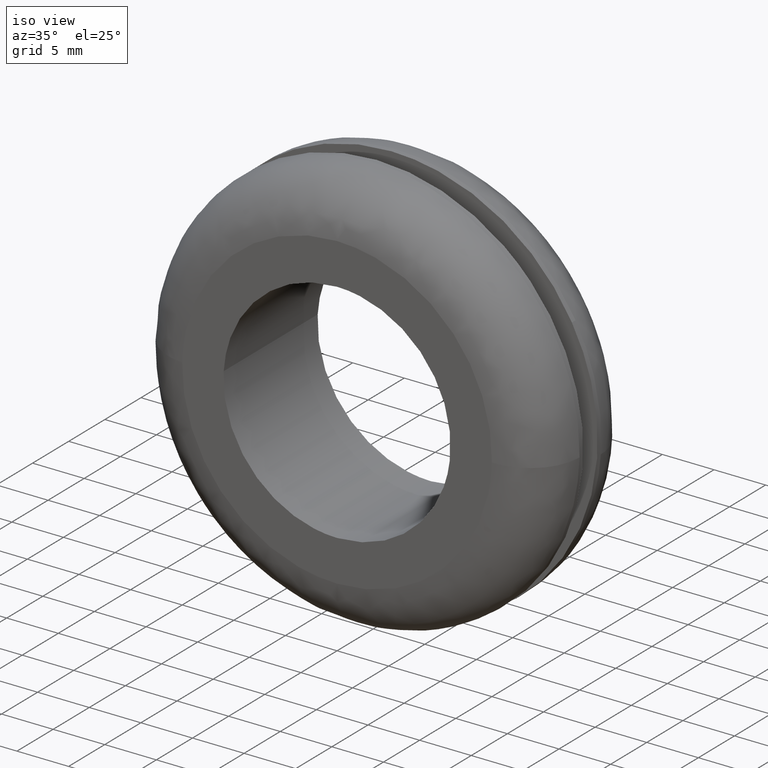
[diagram: clean part render]
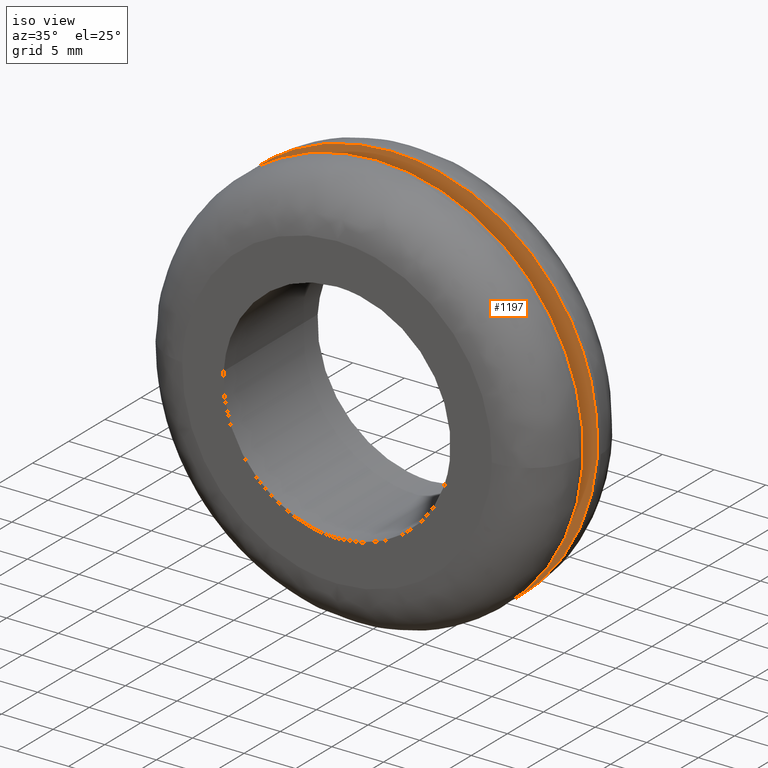
[diagram: same view with one face highlighted and labeled with its STEP entity id]
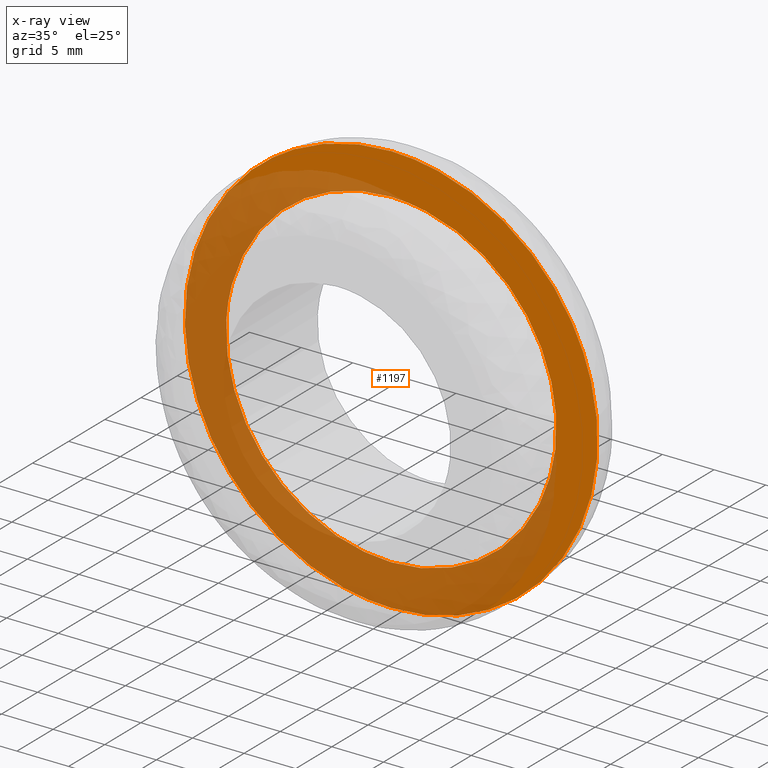
[diagram: x-ray of the same camera — body ghosted, the highlighted face saturated]
A machine part, iso view. The second image highlights one B-rep face of the part: STEP entity #1197.
The next image is the same camera in x-ray: the body ghosted, the highlighted face saturated — about 58% of this face is hidden behind the body in this view.
In plain terms, the highlighted face is a freeform B-spline surface patch.
Its self-contained STEP definition (entity closure, byte-faithful):
#301=CARTESIAN_POINT('',(15.888154302092399,7.500000000000000,-1.888531935829760));
#302=VERTEX_POINT('',#301);
#308=CARTESIAN_POINT('',(0.0,7.500000000000000,16.0));
#309=VERTEX_POINT('',#308);
#310=CARTESIAN_POINT('',(15.888154302092396,7.500000000000000,-1.888531935829760));
#311=CARTESIAN_POINT('',(16.000000000000004,7.500000000000000,-0.947577921476031));
#312=CARTESIAN_POINT('',(16.0,7.500000000000000,-3.673819E-016));
#313=CARTESIAN_POINT('',(15.999999999999998,7.500000000000000,15.999999999999998));
#314=CARTESIAN_POINT('',(0.0,7.500000000000000,16.0));
#322=(BOUNDED_CURVE()B_SPLINE_CURVE(2,(#310,#311,#312,#313,#314),.UNSPECIFIED.,.F.,.U.)B_SPLINE_CURVE_WITH_KNOTS((3,2,3),(0.229562641779904,0.250000000000000,0.500000000000000),.UNSPECIFIED.)CURVE()GEOMETRIC_REPRESENTATION_ITEM()RATIONAL_B_SPLINE_CURVE((0.956027083992986,0.976056145467490,1.0,0.707106781186548,1.0))REPRESENTATION_ITEM(''));
#323=EDGE_CURVE('',#302,#309,#322,.T.);
#325=CARTESIAN_POINT('',(-15.970157387610151,7.500000000000000,0.976766612277504));
#326=VERTEX_POINT('',#325);
#327=CARTESIAN_POINT('',(0.0,7.500000000000000,16.0));
#328=CARTESIAN_POINT('',(-15.051306531893854,7.499999999999999,15.999999999999998));
#329=CARTESIAN_POINT('',(-15.970157387610147,7.500000000000001,0.976766612277504));
#337=(BOUNDED_CURVE()B_SPLINE_CURVE(2,(#327,#328,#329),.UNSPECIFIED.,.F.,.U.)B_SPLINE_CURVE_WITH_KNOTS((3,3),(0.500000000000000,0.739333070504357),.UNSPECIFIED.)CURVE()GEOMETRIC_REPRESENTATION_ITEM()RATIONAL_B_SPLINE_CURVE((1.0,0.719603866445888,0.976072273700219))REPRESENTATION_ITEM(''));
#338=EDGE_CURVE('',#309,#326,#337,.T.);
#412=CARTESIAN_POINT('',(0.0,7.500000000000000,-16.0));
#413=VERTEX_POINT('',#412);
#414=CARTESIAN_POINT('',(-15.970157387610147,7.500000000000001,0.976766612277504));
#415=CARTESIAN_POINT('',(-16.0,7.500000000000000,0.488839188589614));
#416=CARTESIAN_POINT('',(-16.0,7.500000000000000,-3.673819E-016));
#417=CARTESIAN_POINT('',(-15.999999999999998,7.500000000000000,-15.999999999999998));
#418=CARTESIAN_POINT('',(0.0,7.500000000000000,-16.0));
#426=(BOUNDED_CURVE()B_SPLINE_CURVE(2,(#414,#415,#416,#417,#418),.UNSPECIFIED.,.F.,.U.)B_SPLINE_CURVE_WITH_KNOTS((3,2,3),(0.739333070504357,0.750000000000000,1.0),.UNSPECIFIED.)CURVE()GEOMETRIC_REPRESENTATION_ITEM()RATIONAL_B_SPLINE_CURVE((0.976072273700219,0.987502914740660,1.0,0.707106781186548,1.0))REPRESENTATION_ITEM(''));
#427=EDGE_CURVE('',#326,#413,#426,.T.);
#429=CARTESIAN_POINT('',(0.0,7.500000000000000,-16.0));
#430=CARTESIAN_POINT('',(14.210806663481497,7.500000000000000,-15.999999999999995));
#431=CARTESIAN_POINT('',(15.888154302092396,7.500000000000000,-1.888531935829760));
#439=(BOUNDED_CURVE()B_SPLINE_CURVE(2,(#429,#430,#431),.UNSPECIFIED.,.F.,.U.)B_SPLINE_CURVE_WITH_KNOTS((3,3),(0.0,0.229562641779904),.UNSPECIFIED.)CURVE()GEOMETRIC_REPRESENTATION_ITEM()RATIONAL_B_SPLINE_CURVE((1.0,0.731050635719058,0.956027083992986))REPRESENTATION_ITEM(''));
#440=EDGE_CURVE('',#413,#302,#439,.T.);
#496=CARTESIAN_POINT('',(-13.511803360147260,7.500000000000000,14.745547462088750));
#497=VERTEX_POINT('',#496);
#503=CARTESIAN_POINT('',(0.0,7.500000000000000,20.0));
#504=VERTEX_POINT('',#503);
#505=CARTESIAN_POINT('',(0.0,7.500000000000000,20.0));
#506=CARTESIAN_POINT('',(-7.777574018593410,7.500000000000001,20.000000000000004));
#507=CARTESIAN_POINT('',(-13.511803360147285,7.500000000000000,14.745547462088767));
#515=(BOUNDED_CURVE()B_SPLINE_CURVE(2,(#505,#506,#507),.UNSPECIFIED.,.F.,.U.)B_SPLINE_CURVE_WITH_KNOTS((3,3),(0.500000000000000,0.618415200974131),.UNSPECIFIED.)CURVE()GEOMETRIC_REPRESENTATION_ITEM()RATIONAL_B_SPLINE_CURVE((1.0,0.861267962520980,0.853959781838990))REPRESENTATION_ITEM(''));
#516=EDGE_CURVE('',#504,#497,#515,.T.);
#518=CARTESIAN_POINT('',(17.498930198660631,7.500000000000000,9.684391664032969));
#519=VERTEX_POINT('',#518);
#520=CARTESIAN_POINT('',(17.498930198660638,7.500000000000000,9.684391664032969));
#521=CARTESIAN_POINT('',(11.789987409351792,7.500000000000001,20.0));
#522=CARTESIAN_POINT('',(0.0,7.500000000000000,20.0));
#530=(BOUNDED_CURVE()B_SPLINE_CURVE(2,(#520,#521,#522),.UNSPECIFIED.,.F.,.U.)B_SPLINE_CURVE_WITH_KNOTS((3,3),(0.332484262755645,0.500000000000000),.UNSPECIFIED.)CURVE()GEOMETRIC_REPRESENTATION_ITEM()RATIONAL_B_SPLINE_CURVE((0.870495158345374,0.803743106066369,1.0))REPRESENTATION_ITEM(''));
#531=EDGE_CURVE('',#519,#504,#530,.T.);
#581=CARTESIAN_POINT('',(0.0,7.500000000000000,-20.0));
#582=VERTEX_POINT('',#581);
#583=CARTESIAN_POINT('',(0.0,7.500000000000000,-20.0));
#584=CARTESIAN_POINT('',(19.999999999999996,7.500000000000000,-19.999999999999996));
#585=CARTESIAN_POINT('',(20.0,7.500000000000000,-3.673819E-016));
#586=CARTESIAN_POINT('',(20.0,7.500000000000000,5.165156239245968));
#587=CARTESIAN_POINT('',(17.498930198660638,7.500000000000000,9.684391664032969));
#595=(BOUNDED_CURVE()B_SPLINE_CURVE(2,(#583,#584,#585,#586,#587),.UNSPECIFIED.,.F.,.U.)B_SPLINE_CURVE_WITH_KNOTS((3,2,3),(0.0,0.250000000000000,0.332484262755645),.UNSPECIFIED.)CURVE()GEOMETRIC_REPRESENTATION_ITEM()RATIONAL_B_SPLINE_CURVE((1.0,0.707106781186548,1.0,0.903363675120178,0.870495158345374))REPRESENTATION_ITEM(''));
#596=EDGE_CURVE('',#582,#519,#595,.T.);
#598=CARTESIAN_POINT('',(-13.511803360147285,7.500000000000000,14.745547462088767));
#599=CARTESIAN_POINT('',(-19.999999999999996,7.499999999999999,8.800211259072007));
#600=CARTESIAN_POINT('',(-20.0,7.500000000000000,-3.673819E-016));
#601=CARTESIAN_POINT('',(-19.999999999999996,7.500000000000000,-19.999999999999996));
#602=CARTESIAN_POINT('',(0.0,7.500000000000000,-20.0));
#610=(BOUNDED_CURVE()B_SPLINE_CURVE(2,(#598,#599,#600,#601,#602),.UNSPECIFIED.,.F.,.U.)B_SPLINE_CURVE_WITH_KNOTS((3,2,3),(0.618415200974131,0.750000000000000,1.0),.UNSPECIFIED.)CURVE()GEOMETRIC_REPRESENTATION_ITEM()RATIONAL_B_SPLINE_CURVE((0.853959781838990,0.845838818665568,1.0,0.707106781186548,1.0))REPRESENTATION_ITEM(''));
#611=EDGE_CURVE('',#497,#582,#610,.T.);
#1180=CARTESIAN_POINT('',(-21.988896040195229,7.500000000000000,-21.997999922472239));
#1181=CARTESIAN_POINT('',(-21.988896040195229,7.500000000000000,21.998000995355849));
#1182=CARTESIAN_POINT('',(21.992943314784771,7.500000000000000,-21.997999922472239));
#1183=CARTESIAN_POINT('',(21.992943314784771,7.500000000000000,21.998000995355849));
#1184=B_SPLINE_SURFACE_WITH_KNOTS('',1,1,((#1180,#1182),(#1181,#1183)),.UNSPECIFIED.,.F.,.F.,.U.,(2,2),(2,2),(0.0,43.996000917828077),(0.0,43.981839354980004),.UNSPECIFIED.);
#1185=ORIENTED_EDGE('',*,*,#596,.T.);
#1186=ORIENTED_EDGE('',*,*,#531,.T.);
#1187=ORIENTED_EDGE('',*,*,#516,.T.);
#1188=ORIENTED_EDGE('',*,*,#611,.T.);
#1189=EDGE_LOOP('',(#1185,#1186,#1187,#1188));
#1190=FACE_OUTER_BOUND('',#1189,.T.);
#1191=ORIENTED_EDGE('',*,*,#338,.F.);
#1192=ORIENTED_EDGE('',*,*,#323,.F.);
#1193=ORIENTED_EDGE('',*,*,#440,.F.);
#1194=ORIENTED_EDGE('',*,*,#427,.F.);
#1195=EDGE_LOOP('',(#1191,#1192,#1193,#1194));
#1196=FACE_BOUND('',#1195,.T.);
#1197=ADVANCED_FACE('',(#1190,#1196),#1184,.F.);